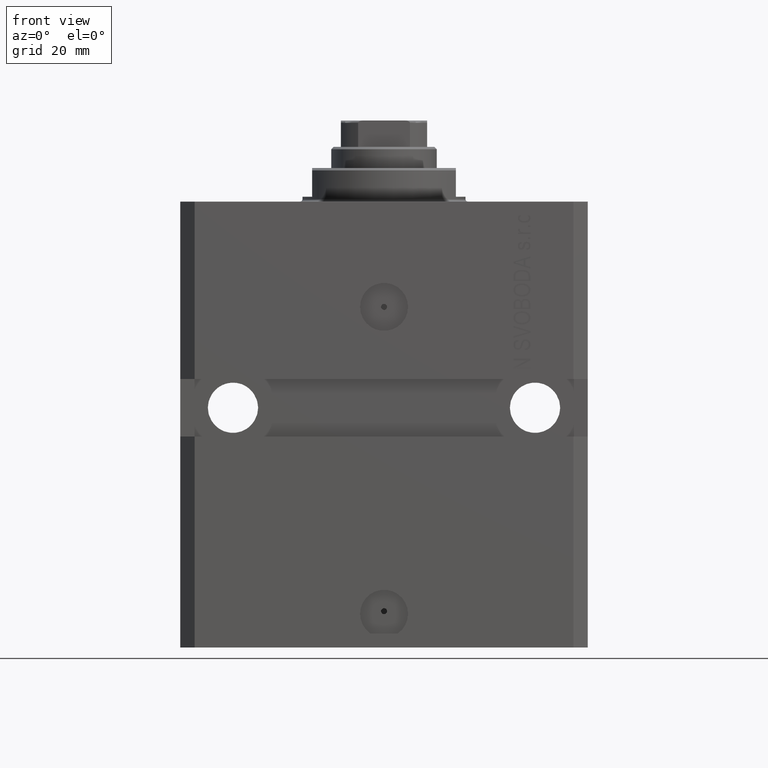
[diagram: clean part render]
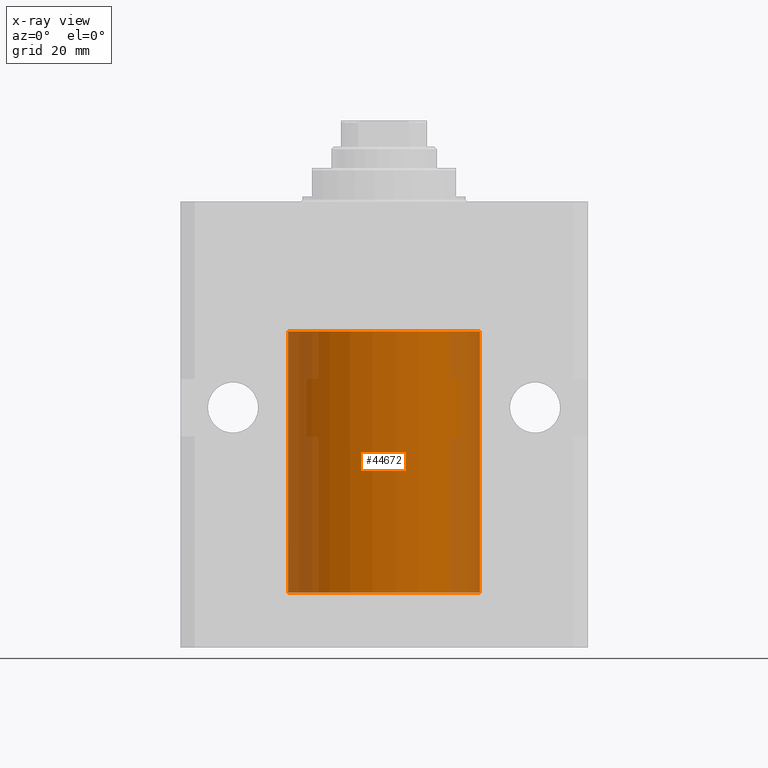
[diagram: x-ray — body ghosted, one internal face saturated and labeled with its STEP entity id]
A machine part, front view, then the same camera in x-ray: the body is ghosted and one INTERNAL B-rep face — a face not visible from any outside direction — is saturated and labeled: STEP entity #44672.
In plain terms, the highlighted cylindrical surface (partial cylindrical patch) has radius 20 mm, axis along (0, 0, 1).
Its self-contained STEP definition (entity closure, byte-faithful):
#197 = VERTEX_POINT ( 'NONE', #8504 ) ;
#1674 = CARTESIAN_POINT ( 'NONE',  ( -20.00000000000000000, -1.124177324826063808E-14, -78.37500000000000000 ) ) ;
#1851 = DIRECTION ( 'NONE',  ( -0.000000000000000000, -0.000000000000000000, 1.000000000000000000 ) ) ;
#2410 = CIRCLE ( 'NONE', #40781, 20.00000000000000000 ) ;
#2873 = CARTESIAN_POINT ( 'NONE',  ( -19.99767054355995555, -0.3263099029014857599, -79.55741108240768256 ) ) ;
#2936 = CARTESIAN_POINT ( 'NONE',  ( 20.00000000000000000, 0.000000000000000000, -27.10000000000000142 ) ) ;
#3473 = DIRECTION ( 'NONE',  ( 1.000000000000000000, 0.000000000000000000, 0.000000000000000000 ) ) ;
#4977 = DIRECTION ( 'NONE',  ( 0.000000000000000000, 0.000000000000000000, 1.000000000000000000 ) ) ;
#6611 = CARTESIAN_POINT ( 'NONE',  ( 20.00000000000000000, 0.000000000000000000, -81.60000000000000853 ) ) ;
#6905 = EDGE_CURVE ( 'NONE', #18090, #10988, #23371, .T. ) ;
#7921 = ORIENTED_EDGE ( 'NONE', *, *, #6905, .T. ) ;
#8504 = CARTESIAN_POINT ( 'NONE',  ( 20.00000000000000000, 0.000000000000000000, -81.60000000000000853 ) ) ;
#9474 = CARTESIAN_POINT ( 'NONE',  ( -20.00000000000000355, -0.1631318982819177366, -79.62500000000015632 ) ) ;
#9690 = CARTESIAN_POINT ( 'NONE',  ( -19.99023630310506761, -0.6248620367829604838, -79.16538138329534036 ) ) ;
#10281 = FACE_OUTER_BOUND ( 'NONE', #20742, .T. ) ;
#10590 = CARTESIAN_POINT ( 'NONE',  ( -19.99765984516762174, -0.3269569594424049930, -78.44291008943298493 ) ) ;
#10988 = VERTEX_POINT ( 'NONE', #1674 ) ;
#11180 = DIRECTION ( 'NONE',  ( -0.000000000000000000, -0.000000000000000000, 1.000000000000000000 ) ) ;
#12068 = CARTESIAN_POINT ( 'NONE',  ( -20.00000000000000000, 2.449293598294706513E-15, -81.60000000000000853 ) ) ;
#12674 = ORIENTED_EDGE ( 'NONE', *, *, #31690, .T. ) ;
#13100 = CARTESIAN_POINT ( 'NONE',  ( -19.99022768983530440, -0.6251375268966040677, -78.83566303088220195 ) ) ;
#13123 = ORIENTED_EDGE ( 'NONE', *, *, #39941, .F. ) ;
#13770 = CARTESIAN_POINT ( 'NONE',  ( -20.00000000000000000, -1.124177324826063808E-14, -78.37500000000000000 ) ) ;
#14647 = VERTEX_POINT ( 'NONE', #38443 ) ;
#15041 = CARTESIAN_POINT ( 'NONE',  ( -20.00000000000000000, 2.449293598294706513E-15, -81.60000000000000853 ) ) ;
#15905 = DIRECTION ( 'NONE',  ( 0.000000000000000000, 0.000000000000000000, 1.000000000000000000 ) ) ;
#16985 = VERTEX_POINT ( 'NONE', #2936 ) ;
#18090 = VERTEX_POINT ( 'NONE', #40971 ) ;
#18801 = DIRECTION ( 'NONE',  ( 1.000000000000000000, 0.000000000000000000, 0.000000000000000000 ) ) ;
#19007 = EDGE_CURVE ( 'NONE', #10988, #14647, #32897, .T. ) ;
#19067 = CARTESIAN_POINT ( 'NONE',  ( 0.000000000000000000, 0.000000000000000000, -81.60000000000000853 ) ) ;
#20721 = CIRCLE ( 'NONE', #33754, 20.00000000000000000 ) ;
#20742 = EDGE_LOOP ( 'NONE', ( #13123, #25935, #7921, #23975, #12674, #23528 ) ) ;
#22693 = DIRECTION ( 'NONE',  ( 1.000000000000000000, 0.000000000000000000, 0.000000000000000000 ) ) ;
#23162 = VECTOR ( 'NONE', #1851, 1000.000000000000000 ) ;
#23371 = B_SPLINE_CURVE_WITH_KNOTS ( 'NONE', 3,
 ( #30095, #9474, #2873, #44128, #9690, #13100, #30753, #10590, #35047, #13770 ),
 .UNSPECIFIED., .F., .F.,
 ( 4, 2, 2, 2, 4 ),
 ( 0.001954154509844221576, 0.002442582466643782209, 0.002931010423443342408, 0.003419438380242903041, 0.003907866337042463674 ),
 .UNSPECIFIED. ) ;
#23528 = ORIENTED_EDGE ( 'NONE', *, *, #26818, .F. ) ;
#23975 = ORIENTED_EDGE ( 'NONE', *, *, #19007, .T. ) ;
#24104 = CARTESIAN_POINT ( 'NONE',  ( 0.000000000000000000, 0.000000000000000000, -81.60000000000000853 ) ) ;
#25935 = ORIENTED_EDGE ( 'NONE', *, *, #26668, .T. ) ;
#26245 = VECTOR ( 'NONE', #11180, 1000.000000000000000 ) ;
#26668 = EDGE_CURVE ( 'NONE', #38268, #18090, #39283, .T. ) ;
#26818 = EDGE_CURVE ( 'NONE', #197, #16985, #37655, .T. ) ;
#27713 = VECTOR ( 'NONE', #37879, 1000.000000000000000 ) ;
#28174 = CYLINDRICAL_SURFACE ( 'NONE', #44654, 20.00000000000000000 ) ;
#30095 = CARTESIAN_POINT ( 'NONE',  ( -20.00000000000010303, 3.580159286679549072E-13, -79.62500000000332534 ) ) ;
#30753 = CARTESIAN_POINT ( 'NONE',  ( -19.99255948581289033, -0.5575529953197770894, -78.67383335671266309 ) ) ;
#31690 = EDGE_CURVE ( 'NONE', #14647, #16985, #2410, .T. ) ;
#32093 = CARTESIAN_POINT ( 'NONE',  ( -20.00000000000000000, 2.449293598294706513E-15, -81.60000000000000853 ) ) ;
#32897 = LINE ( 'NONE', #12068, #23162 ) ;
#33754 = AXIS2_PLACEMENT_3D ( 'NONE', #19067, #15905, #22693 ) ;
#34520 = DIRECTION ( 'NONE',  ( -0.000000000000000000, -0.000000000000000000, 1.000000000000000000 ) ) ;
#35047 = CARTESIAN_POINT ( 'NONE',  ( -20.00000000000000000, -0.1651542110816439091, -78.37500000000001421 ) ) ;
#36026 = CARTESIAN_POINT ( 'NONE',  ( 0.000000000000000000, 0.000000000000000000, -27.10000000000000142 ) ) ;
#37655 = LINE ( 'NONE', #6611, #27713 ) ;
#37879 = DIRECTION ( 'NONE',  ( -0.000000000000000000, -0.000000000000000000, 1.000000000000000000 ) ) ;
#38268 = VERTEX_POINT ( 'NONE', #32093 ) ;
#38443 = CARTESIAN_POINT ( 'NONE',  ( -20.00000000000000000, 2.449293598294706513E-15, -27.10000000000000142 ) ) ;
#39283 = LINE ( 'NONE', #15041, #26245 ) ;
#39941 = EDGE_CURVE ( 'NONE', #38268, #197, #20721, .T. ) ;
#40781 = AXIS2_PLACEMENT_3D ( 'NONE', #36026, #4977, #18801 ) ;
#40971 = CARTESIAN_POINT ( 'NONE',  ( -20.00000000000010303, 3.580159286679549072E-13, -79.62500000000332534 ) ) ;
#44128 = CARTESIAN_POINT ( 'NONE',  ( -19.99257639367449357, -0.5569510432580352388, -79.32709448625169557 ) ) ;
#44654 = AXIS2_PLACEMENT_3D ( 'NONE', #24104, #34520, #3473 ) ;
#44672 = ADVANCED_FACE ( 'NONE', ( #10281 ), #28174, .F. ) ;